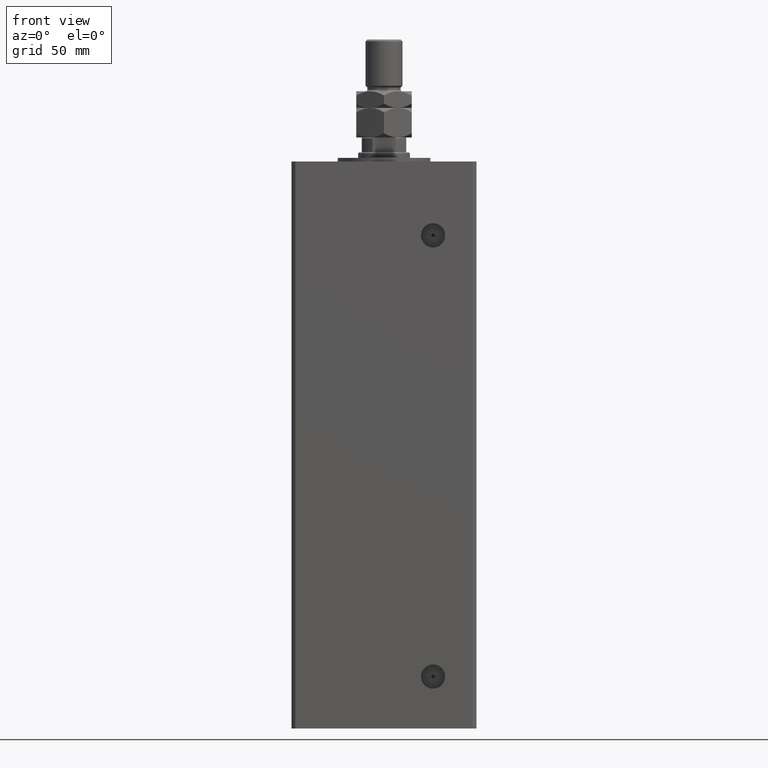
[diagram: clean part render]
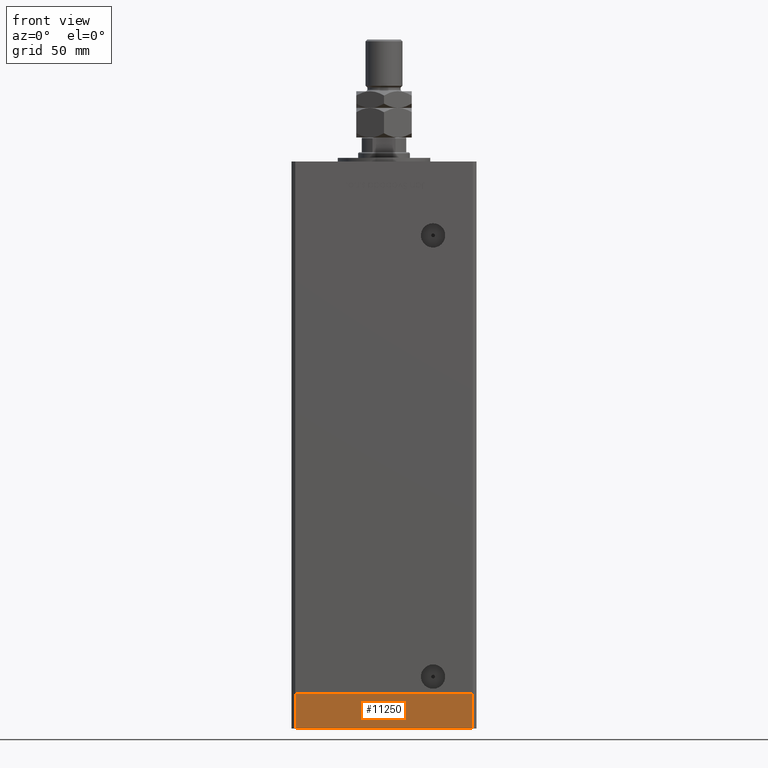
[diagram: same view with one face highlighted and labeled with its STEP entity id]
A machine part, front view. The second image highlights one B-rep face of the part: STEP entity #11250.
In plain terms, the highlighted planar face has unit normal (0, -1, -0).
Its self-contained STEP definition (entity closure, byte-faithful):
#4422 = FACE_OUTER_BOUND ( 'NONE', #4845, .T. ) ;
#4845 = EDGE_LOOP ( 'NONE', ( #23193, #12545, #9873, #19057 ) ) ;
#6360 = VERTEX_POINT ( 'NONE', #45463 ) ;
#7254 = EDGE_CURVE ( 'NONE', #12588, #32105, #16921, .T. ) ;
#8281 = EDGE_CURVE ( 'NONE', #32105, #46935, #25829, .T. ) ;
#9037 = CARTESIAN_POINT ( 'NONE',  ( -47.99999999999999289, -43.50000000000001421, -19.00000000000000000 ) ) ;
#9219 = EDGE_CURVE ( 'NONE', #12588, #6360, #42126, .T. ) ;
#9873 = ORIENTED_EDGE ( 'NONE', *, *, #7254, .T. ) ;
#11250 = ADVANCED_FACE ( 'NONE', ( #4422 ), #33512, .T. ) ;
#12060 = AXIS2_PLACEMENT_3D ( 'NONE', #9037, #25627, #45996 ) ;
#12545 = ORIENTED_EDGE ( 'NONE', *, *, #9219, .F. ) ;
#12588 = VERTEX_POINT ( 'NONE', #45992 ) ;
#16281 = VECTOR ( 'NONE', #50343, 1000.000000000000000 ) ;
#16921 = LINE ( 'NONE', #30226, #16281 ) ;
#18212 = EDGE_CURVE ( 'NONE', #6360, #46935, #41005, .T. ) ;
#19057 = ORIENTED_EDGE ( 'NONE', *, *, #8281, .T. ) ;
#20381 = CARTESIAN_POINT ( 'NONE',  ( 47.99999999999999289, -43.50000000000001421, -19.00000000000000000 ) ) ;
#20628 = DIRECTION ( 'NONE',  ( 1.000000000000000000, 0.000000000000000000, 0.000000000000000000 ) ) ;
#21746 = CARTESIAN_POINT ( 'NONE',  ( 47.99999999999999289, -43.50000000000001421, -19.00000000000000000 ) ) ;
#23193 = ORIENTED_EDGE ( 'NONE', *, *, #18212, .F. ) ;
#25627 = DIRECTION ( 'NONE',  ( 0.000000000000000000, -1.000000000000000000, 0.000000000000000000 ) ) ;
#25829 = LINE ( 'NONE', #21746, #30219 ) ;
#29374 = CARTESIAN_POINT ( 'NONE',  ( -47.99999999999999289, -43.50000000000001421, -19.00000000000000000 ) ) ;
#30219 = VECTOR ( 'NONE', #46473, 1000.000000000000000 ) ;
#30226 = CARTESIAN_POINT ( 'NONE',  ( -47.99999999999999289, -43.50000000000001421, -19.00000000000000000 ) ) ;
#32105 = VERTEX_POINT ( 'NONE', #20381 ) ;
#32661 = DIRECTION ( 'NONE',  ( 0.000000000000000000, 0.000000000000000000, 1.000000000000000000 ) ) ;
#33402 = CARTESIAN_POINT ( 'NONE',  ( -47.99999999999999289, -43.50000000000001421, 0.000000000000000000 ) ) ;
#33512 = PLANE ( 'NONE',  #12060 ) ;
#38567 = VECTOR ( 'NONE', #20628, 1000.000000000000000 ) ;
#39806 = VECTOR ( 'NONE', #32661, 1000.000000000000000 ) ;
#41005 = LINE ( 'NONE', #33402, #38567 ) ;
#42126 = LINE ( 'NONE', #29374, #39806 ) ;
#43069 = CARTESIAN_POINT ( 'NONE',  ( 47.99999999999999289, -43.50000000000001421, 0.000000000000000000 ) ) ;
#45463 = CARTESIAN_POINT ( 'NONE',  ( -47.99999999999999289, -43.50000000000001421, 0.000000000000000000 ) ) ;
#45992 = CARTESIAN_POINT ( 'NONE',  ( -47.99999999999999289, -43.50000000000001421, -19.00000000000000000 ) ) ;
#45996 = DIRECTION ( 'NONE',  ( 0.000000000000000000, -0.000000000000000000, -1.000000000000000000 ) ) ;
#46473 = DIRECTION ( 'NONE',  ( 0.000000000000000000, 0.000000000000000000, 1.000000000000000000 ) ) ;
#46935 = VERTEX_POINT ( 'NONE', #43069 ) ;
#50343 = DIRECTION ( 'NONE',  ( 1.000000000000000000, 0.000000000000000000, 0.000000000000000000 ) ) ;